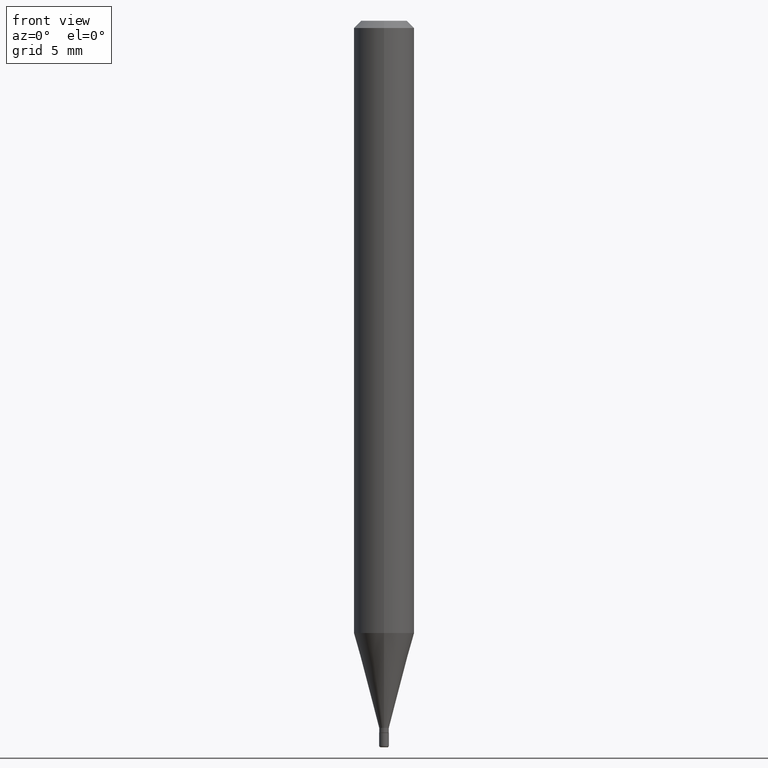
[diagram: clean part render]
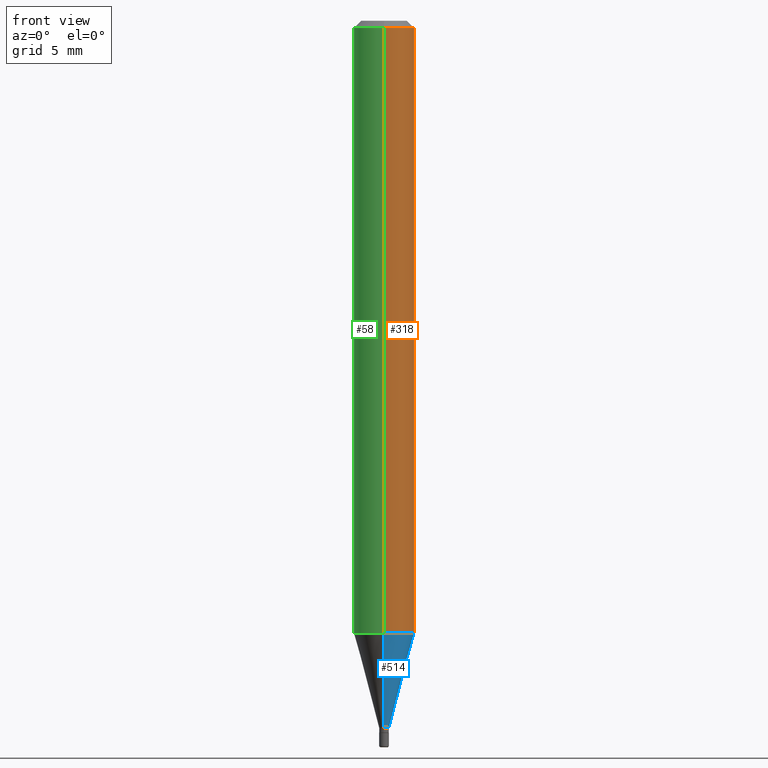
[diagram: same view with three faces highlighted in distinct colors, each labeled with its STEP entity id]
A machine part, front view with three faces highlighted in distinct colors.
Their STEP definitions:

[orange] entity #318 — the highlighted cylindrical surface (edge-blend (fillet) strip) has radius 1.5875 mm, axis along (-0, 0, 1).
#2 = CYLINDRICAL_SURFACE ( 'NONE', #101, 0.06250000000000000000 ) ;
#35 = ORIENTED_EDGE ( 'NONE', *, *, #352, .T. ) ;
#61 = CARTESIAN_POINT ( 'NONE',  ( -4.364351673553607559E-16, -0.06250000000000442701, -1.264067332602633487 ) ) ;
#63 = CARTESIAN_POINT ( 'NONE',  ( -4.364351673553912750E-16, -0.06250000000000005551, -0.01499999999999948597 ) ) ;
#65 = VERTEX_POINT ( 'NONE', #63 ) ;
#79 = DIRECTION ( 'NONE',  ( -2.445457269007472935E-29, 3.491497860738215272E-15, 1.000000000000000000 ) ) ;
#89 = VERTEX_POINT ( 'NONE', #61 ) ;
#90 = CARTESIAN_POINT ( 'NONE',  ( 0.000000000000000000, 0.000000000000000000, 0.000000000000000000 ) ) ;
#101 = AXIS2_PLACEMENT_3D ( 'NONE', #90, #327, #293 ) ;
#103 = EDGE_LOOP ( 'NONE', ( #464, #35, #315, #471 ) ) ;
#109 = VECTOR ( 'NONE', #117, 39.37007874015748143 ) ;
#112 = CARTESIAN_POINT ( 'NONE',  ( 3.668185903511136868E-31, -5.237246791107218877E-17, -0.01499999999999970281 ) ) ;
#117 = DIRECTION ( 'NONE',  ( -2.445457269007472935E-29, 3.491497860738215272E-15, 1.000000000000000000 ) ) ;
#121 = LINE ( 'NONE', #285, #123 ) ;
#123 = VECTOR ( 'NONE', #365, 39.37007874015748143 ) ;
#129 = EDGE_CURVE ( 'NONE', #89, #65, #121, .T. ) ;
#186 = EDGE_CURVE ( 'NONE', #89, #271, #309, .T. ) ;
#195 = CARTESIAN_POINT ( 'NONE',  ( 3.091222647027998016E-29, -4.413488387611157354E-15, -1.264067332602633709 ) ) ;
#235 = CARTESIAN_POINT ( 'NONE',  ( 4.440892098500625669E-16, 0.06250000000000000000, -2.182186162961384299E-16 ) ) ;
#239 = CIRCLE ( 'NONE', #357, 0.06250000000000000000 ) ;
#267 = VERTEX_POINT ( 'NONE', #361 ) ;
#271 = VERTEX_POINT ( 'NONE', #322 ) ;
#285 = CARTESIAN_POINT ( 'NONE',  ( -4.364351673553916201E-16, -0.06250000000000000000, 2.182186162961384299E-16 ) ) ;
#288 = LINE ( 'NONE', #235, #109 ) ;
#293 = DIRECTION ( 'NONE',  ( -6.982962677686265922E-15, -1.000000000000000000, 3.491497860738214878E-15 ) ) ;
#295 = EDGE_CURVE ( 'NONE', #65, #267, #239, .T. ) ;
#309 = CIRCLE ( 'NONE', #419, 0.06250000000000000000 ) ;
#315 = ORIENTED_EDGE ( 'NONE', *, *, #295, .F. ) ;
#318 = ADVANCED_FACE ( 'NONE', ( #366 ), #2, .T. ) ;
#322 = CARTESIAN_POINT ( 'NONE',  ( 4.440892098500933817E-16, 0.06249999999999558686, -1.264067332602633931 ) ) ;
#327 = DIRECTION ( 'NONE',  ( -2.445457269007472935E-29, 3.491497860738215272E-15, 1.000000000000000000 ) ) ;
#352 = EDGE_CURVE ( 'NONE', #271, #267, #288, .T. ) ;
#357 = AXIS2_PLACEMENT_3D ( 'NONE', #112, #79, #402 ) ;
#361 = CARTESIAN_POINT ( 'NONE',  ( 4.440892098500936776E-16, 0.06249999999999993755, -0.01499999999999992138 ) ) ;
#365 = DIRECTION ( 'NONE',  ( -2.445457269007472935E-29, 3.491497860738215272E-15, 1.000000000000000000 ) ) ;
#366 = FACE_OUTER_BOUND ( 'NONE', #103, .T. ) ;
#385 = DIRECTION ( 'NONE',  ( -6.982962677686265922E-15, -1.000000000000000000, 4.370956789862821150E-15 ) ) ;
#402 = DIRECTION ( 'NONE',  ( -6.982962677686265922E-15, -1.000000000000000000, 3.483106191921935554E-15 ) ) ;
#419 = AXIS2_PLACEMENT_3D ( 'NONE', #195, #458, #385 ) ;
#458 = DIRECTION ( 'NONE',  ( -2.445457269007472935E-29, 3.491497860738215272E-15, 1.000000000000000000 ) ) ;
#464 = ORIENTED_EDGE ( 'NONE', *, *, #186, .T. ) ;
#471 = ORIENTED_EDGE ( 'NONE', *, *, #129, .F. ) ;

[blue] entity #514 — the highlighted conical surface has half-angle 15 deg.
#21 = ORIENTED_EDGE ( 'NONE', *, *, #111, .F. ) ;
#61 = CARTESIAN_POINT ( 'NONE',  ( -4.364351673553607559E-16, -0.06250000000000442701, -1.264067332602633487 ) ) ;
#64 = CARTESIAN_POINT ( 'NONE',  ( 7.105427357604560509E-17, 0.009999999999994891448, -1.459999999999999964 ) ) ;
#69 = VERTEX_POINT ( 'NONE', #499 ) ;
#89 = VERTEX_POINT ( 'NONE', #61 ) ;
#93 = DIRECTION ( 'NONE',  ( 1.839019923739593216E-15, 0.2588190451025239591, 0.9659258262890674240 ) ) ;
#106 = ORIENTED_EDGE ( 'NONE', *, *, #300, .T. ) ;
#111 = EDGE_CURVE ( 'NONE', #69, #89, #183, .T. ) ;
#127 = CARTESIAN_POINT ( 'NONE',  ( 2.575717417130697276E-16, 0.009999999999994891448, -1.459999999999999964 ) ) ;
#151 = AXIS2_PLACEMENT_3D ( 'NONE', #440, #170, #248 ) ;
#162 = DIRECTION ( 'NONE',  ( -2.445457269007472935E-29, 3.491497860738215272E-15, 1.000000000000000000 ) ) ;
#170 = DIRECTION ( 'NONE',  ( -2.445457269007472935E-29, 3.491497860738215272E-15, 1.000000000000000000 ) ) ;
#183 = LINE ( 'NONE', #344, #483 ) ;
#186 = EDGE_CURVE ( 'NONE', #89, #271, #309, .T. ) ;
#195 = CARTESIAN_POINT ( 'NONE',  ( 3.091222647027998016E-29, -4.413488387611157354E-15, -1.264067332602633709 ) ) ;
#197 = EDGE_LOOP ( 'NONE', ( #106, #432, #390, #21 ) ) ;
#210 = VECTOR ( 'NONE', #93, 39.37007874015748143 ) ;
#211 = DIRECTION ( 'NONE',  ( -6.982962677686265133E-15, -1.000000000000000000, 0.000000000000000000 ) ) ;
#248 = DIRECTION ( 'NONE',  ( -6.982962677686265133E-15, -1.000000000000000000, 0.000000000000000000 ) ) ;
#251 = FACE_OUTER_BOUND ( 'NONE', #197, .T. ) ;
#271 = VERTEX_POINT ( 'NONE', #322 ) ;
#276 = CIRCLE ( 'NONE', #376, 0.009999999999999988065 ) ;
#282 = CONICAL_SURFACE ( 'NONE', #151, 0.009999999999999988065, 0.2617993877991492413 ) ;
#300 = EDGE_CURVE ( 'NONE', #69, #504, #276, .T. ) ;
#309 = CIRCLE ( 'NONE', #419, 0.06250000000000000000 ) ;
#322 = CARTESIAN_POINT ( 'NONE',  ( 4.440892098500933817E-16, 0.06249999999999558686, -1.264067332602633931 ) ) ;
#344 = CARTESIAN_POINT ( 'NONE',  ( -6.982962677682687501E-17, -0.01000000000000508468, -1.459999999999999964 ) ) ;
#367 = CARTESIAN_POINT ( 'NONE',  ( 3.570367612750911147E-29, -5.097586876677794968E-15, -1.459999999999999964 ) ) ;
#376 = AXIS2_PLACEMENT_3D ( 'NONE', #367, #162, #211 ) ;
#385 = DIRECTION ( 'NONE',  ( -6.982962677686265922E-15, -1.000000000000000000, 4.370956789862821150E-15 ) ) ;
#390 = ORIENTED_EDGE ( 'NONE', *, *, #186, .F. ) ;
#419 = AXIS2_PLACEMENT_3D ( 'NONE', #195, #458, #385 ) ;
#425 = LINE ( 'NONE', #64, #210 ) ;
#426 = EDGE_CURVE ( 'NONE', #504, #271, #425, .T. ) ;
#432 = ORIENTED_EDGE ( 'NONE', *, *, #426, .T. ) ;
#440 = CARTESIAN_POINT ( 'NONE',  ( 3.570367612750911147E-29, -5.097586876677794968E-15, -1.459999999999999964 ) ) ;
#458 = DIRECTION ( 'NONE',  ( -2.445457269007472935E-29, 3.491497860738215272E-15, 1.000000000000000000 ) ) ;
#474 = DIRECTION ( 'NONE',  ( -1.807323732225323040E-15, -0.2588190451025171868, 0.9659258262890693114 ) ) ;
#483 = VECTOR ( 'NONE', #474, 39.37007874015748854 ) ;
#499 = CARTESIAN_POINT ( 'NONE',  ( -6.982962677682687501E-17, -0.01000000000000508468, -1.459999999999999964 ) ) ;
#504 = VERTEX_POINT ( 'NONE', #127 ) ;
#514 = ADVANCED_FACE ( 'NONE', ( #251 ), #282, .T. ) ;

[green] entity #58 — the highlighted cylindrical surface (edge-blend (fillet) strip) has radius 1.5875 mm, axis along (-0, 0, 1).
#13 = ORIENTED_EDGE ( 'NONE', *, *, #352, .F. ) ;
#43 = DIRECTION ( 'NONE',  ( -2.445457269007472935E-29, 3.491497860738215272E-15, 1.000000000000000000 ) ) ;
#58 = ADVANCED_FACE ( 'NONE', ( #386 ), #178, .T. ) ;
#61 = CARTESIAN_POINT ( 'NONE',  ( -4.364351673553607559E-16, -0.06250000000000442701, -1.264067332602633487 ) ) ;
#63 = CARTESIAN_POINT ( 'NONE',  ( -4.364351673553912750E-16, -0.06250000000000005551, -0.01499999999999948597 ) ) ;
#65 = VERTEX_POINT ( 'NONE', #63 ) ;
#82 = AXIS2_PLACEMENT_3D ( 'NONE', #387, #381, #495 ) ;
#89 = VERTEX_POINT ( 'NONE', #61 ) ;
#109 = VECTOR ( 'NONE', #117, 39.37007874015748143 ) ;
#117 = DIRECTION ( 'NONE',  ( -2.445457269007472935E-29, 3.491497860738215272E-15, 1.000000000000000000 ) ) ;
#121 = LINE ( 'NONE', #285, #123 ) ;
#123 = VECTOR ( 'NONE', #365, 39.37007874015748143 ) ;
#125 = AXIS2_PLACEMENT_3D ( 'NONE', #494, #428, #187 ) ;
#129 = EDGE_CURVE ( 'NONE', #89, #65, #121, .T. ) ;
#178 = CYLINDRICAL_SURFACE ( 'NONE', #125, 0.06250000000000000000 ) ;
#185 = ORIENTED_EDGE ( 'NONE', *, *, #283, .F. ) ;
#187 = DIRECTION ( 'NONE',  ( -6.982962677686265922E-15, -1.000000000000000000, 3.491497860738214878E-15 ) ) ;
#199 = CIRCLE ( 'NONE', #257, 0.06250000000000000000 ) ;
#201 = CARTESIAN_POINT ( 'NONE',  ( 3.668185903511136868E-31, -5.237246791107218877E-17, -0.01499999999999970281 ) ) ;
#220 = ORIENTED_EDGE ( 'NONE', *, *, #129, .T. ) ;
#235 = CARTESIAN_POINT ( 'NONE',  ( 4.440892098500625669E-16, 0.06250000000000000000, -2.182186162961384299E-16 ) ) ;
#242 = DIRECTION ( 'NONE',  ( -6.982962677686265922E-15, -1.000000000000000000, 3.483106191921935554E-15 ) ) ;
#257 = AXIS2_PLACEMENT_3D ( 'NONE', #201, #43, #242 ) ;
#267 = VERTEX_POINT ( 'NONE', #361 ) ;
#271 = VERTEX_POINT ( 'NONE', #322 ) ;
#283 = EDGE_CURVE ( 'NONE', #267, #65, #199, .T. ) ;
#285 = CARTESIAN_POINT ( 'NONE',  ( -4.364351673553916201E-16, -0.06250000000000000000, 2.182186162961384299E-16 ) ) ;
#288 = LINE ( 'NONE', #235, #109 ) ;
#322 = CARTESIAN_POINT ( 'NONE',  ( 4.440892098500933817E-16, 0.06249999999999558686, -1.264067332602633931 ) ) ;
#347 = CIRCLE ( 'NONE', #82, 0.06250000000000000000 ) ;
#352 = EDGE_CURVE ( 'NONE', #271, #267, #288, .T. ) ;
#353 = ORIENTED_EDGE ( 'NONE', *, *, #430, .T. ) ;
#361 = CARTESIAN_POINT ( 'NONE',  ( 4.440892098500936776E-16, 0.06249999999999993755, -0.01499999999999992138 ) ) ;
#365 = DIRECTION ( 'NONE',  ( -2.445457269007472935E-29, 3.491497860738215272E-15, 1.000000000000000000 ) ) ;
#381 = DIRECTION ( 'NONE',  ( -2.445457269007472935E-29, 3.491497860738215272E-15, 1.000000000000000000 ) ) ;
#386 = FACE_OUTER_BOUND ( 'NONE', #415, .T. ) ;
#387 = CARTESIAN_POINT ( 'NONE',  ( 3.091222647027998016E-29, -4.413488387611157354E-15, -1.264067332602633709 ) ) ;
#415 = EDGE_LOOP ( 'NONE', ( #13, #353, #220, #185 ) ) ;
#428 = DIRECTION ( 'NONE',  ( -2.445457269007472935E-29, 3.491497860738215272E-15, 1.000000000000000000 ) ) ;
#430 = EDGE_CURVE ( 'NONE', #271, #89, #347, .T. ) ;
#494 = CARTESIAN_POINT ( 'NONE',  ( 0.000000000000000000, 0.000000000000000000, 0.000000000000000000 ) ) ;
#495 = DIRECTION ( 'NONE',  ( -6.982962677686265922E-15, -1.000000000000000000, 4.370956789862821150E-15 ) ) ;